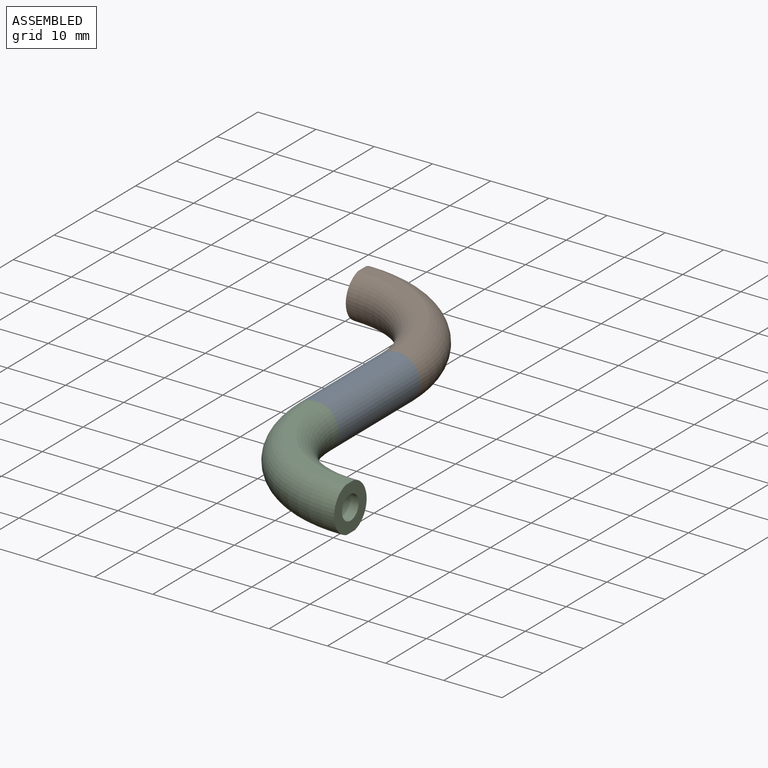
[diagram: assembled view]
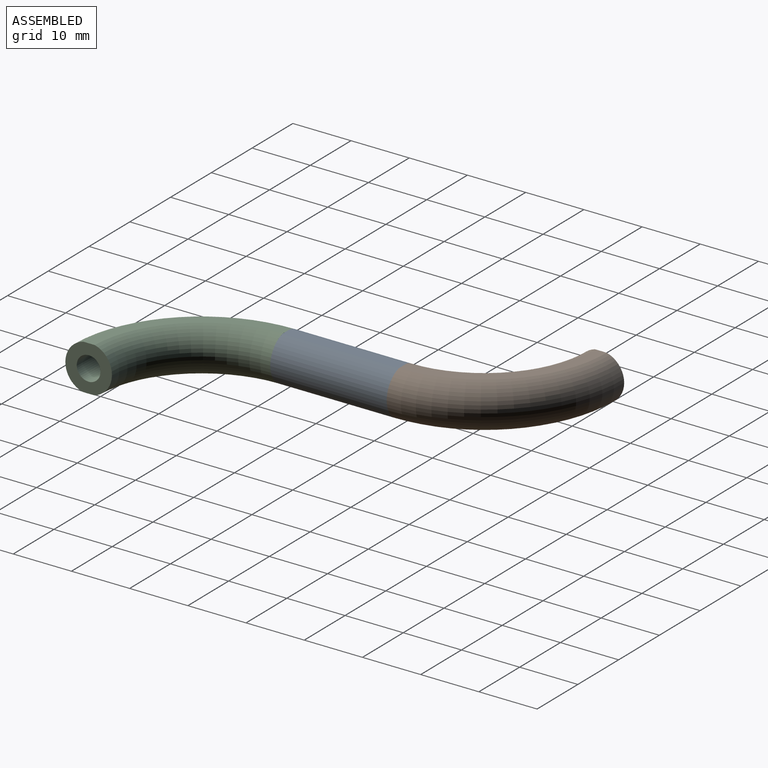
[diagram: assembled view, second angle]
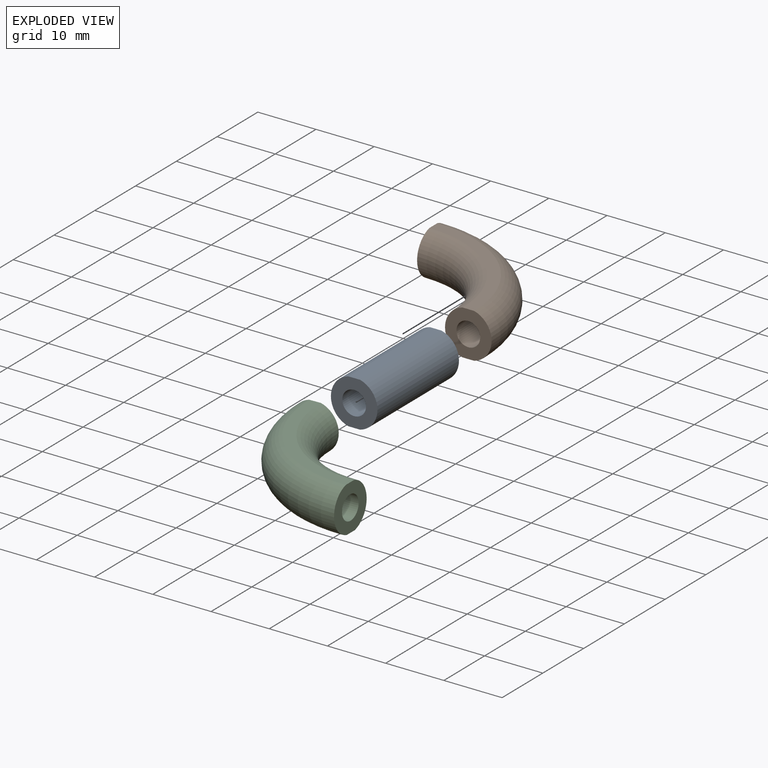
[diagram: exploded view]
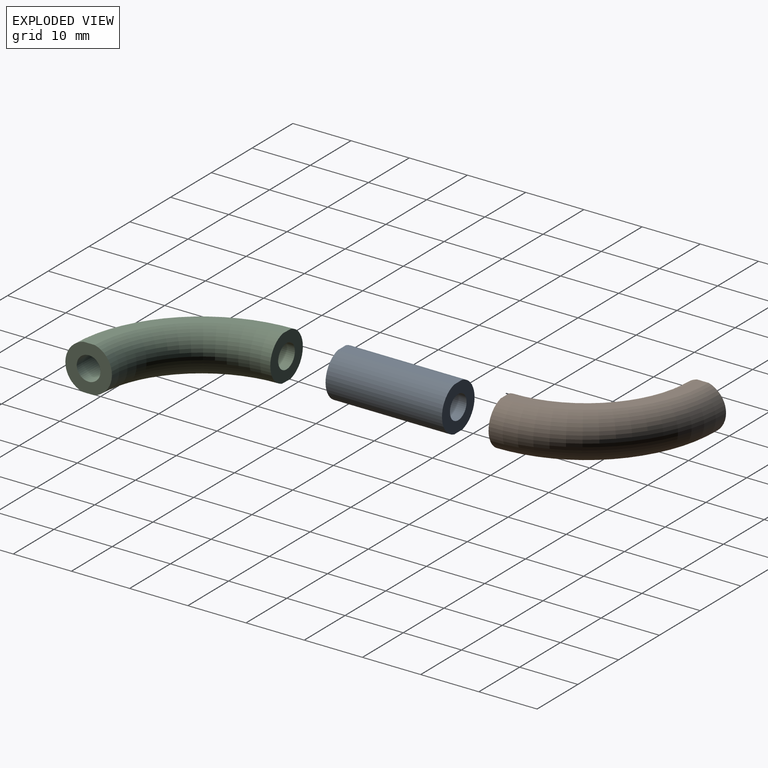
[diagram: exploded view, second angle]
ASSEMBLY  parts=3 mates=2
PART A: 16 faces, bbox 8x20x7.7 mm
  f0: plane 8x7.75mm, normal (0,-1,0), area 36.9mm2, adj f1,f2,f3,f4,f11
  f1: plane 20x2mm, normal (0,0,-1), area 40mm2, adj f0,f2,f4,f5
  f2: cylinder r=4mm len=20mm, axis (0,1,0), area 210.9mm2, adj f0,f1,f3,f5
  f3: plane 20x2mm, normal (0,0,1), area 40mm2, adj f0,f2,f4,f5
  f4: cylinder r=4mm len=20mm, axis (0,1,0), area 210.9mm2, adj f0,f1,f3,f5
  f5: plane 8x7.75mm, normal (0,1,0), area 36.9mm2, adj f1,f2,f3,f4,f6
  f6: cylinder r=2.04mm len=4.72mm, axis (0,1,0), area 60.6mm2, adj f5,f9
  f7: cylinder r=2.55mm len=5.1mm, axis (0,1,0), area 9.8mm2, adj f9,f10
  f8: plane 2.65x2.65mm, normal (0,1,0), area 5.5mm2, adj f10
  f9: cone r=2.55mm half-angle=45deg, axis (0,-1,0), area 10.4mm2, adj f6,f7
  f10: cone r=1.33mm half-angle=45deg, axis (0,1,0), area 21.1mm2, adj f7,f8
  f11: cylinder r=2.04mm len=4.72mm, axis (0,-1,0), area 60.6mm2, adj f0,f14
  f12: cylinder r=2.55mm len=5.1mm, axis (0,-1,0), area 9.8mm2, adj f14,f15
  f13: plane 2.65x2.65mm, normal (0,-1,0), area 5.5mm2, adj f15
  f14: cone r=2.55mm half-angle=45deg, axis (0,1,0), area 10.4mm2, adj f11,f12
  f15: cone r=1.33mm half-angle=45deg, axis (0,-1,0), area 21.1mm2, adj f12,f13
PART B: 16 faces, bbox 26x26x8 mm
  f0: torus R=20mm, axis (0,0,1), area 379.9mm2, adj f2,f3,f14,f15
  f1: torus R=20mm, axis (0,0,1), area 282.6mm2, adj f2,f3,f14,f15
  f2: plane 8x7.75mm, normal (0,-1,0), area 36.9mm2, adj f0,f1,f9,f14,f15
  f3: plane 8x7.75mm, normal (-1,0,0), area 36.9mm2, adj f0,f1,f4,f14,f15
  f4: cylinder r=2.04mm len=4.72mm, axis (-1,0,0), area 60.6mm2, adj f3,f7
  f5: cylinder r=2.55mm len=5.1mm, axis (-1,0,0), area 9.8mm2, adj f7,f8
  f6: plane 2.65x2.65mm, normal (-1,0,0), area 5.5mm2, adj f8
  f7: cone r=2.55mm half-angle=45deg, axis (1,0,0), area 10.4mm2, adj f4,f5
  f8: cone r=1.33mm half-angle=45deg, axis (-1,0,0), area 21.1mm2, adj f5,f6
  f9: cylinder r=2.04mm len=4.72mm, axis (0,-1,0), area 60.6mm2, adj f2,f12
  f10: cylinder r=2.55mm len=5.1mm, axis (0,-1,0), area 9.8mm2, adj f12,f13
  f11: plane 2.65x2.65mm, normal (0,-1,0), area 5.5mm2, adj f13
  f12: cone r=2.55mm half-angle=45deg, axis (0,1,0), area 10.4mm2, adj f9,f10
  f13: cone r=1.33mm half-angle=45deg, axis (0,-1,0), area 21.1mm2, adj f10,f11
  f14: plane 21x21mm, normal (0,0,1), area 62.8mm2, adj f0,f1,f2,f3
  f15: plane 21x21mm, normal (0,0,-1), area 62.8mm2, adj f0,f1,f2,f3
PART C: same geometry as B
PLACE A t=(12.93,0,6.18)mm
PLACE B t=(-7.07,0,6.18)mm
PLACE C rot(axis=(-0.71,0.71,-0.01),179.2deg) t=(32.93,-20,6.57)mm
MATE cylindrical A.f6 <-> B.f9  axis (0,1,0) through (12.93,0,6.18)mm
MATE cylindrical C.f4 <-> A.f11  axis (0,1,0) through (12.93,-20,6.18)mm
